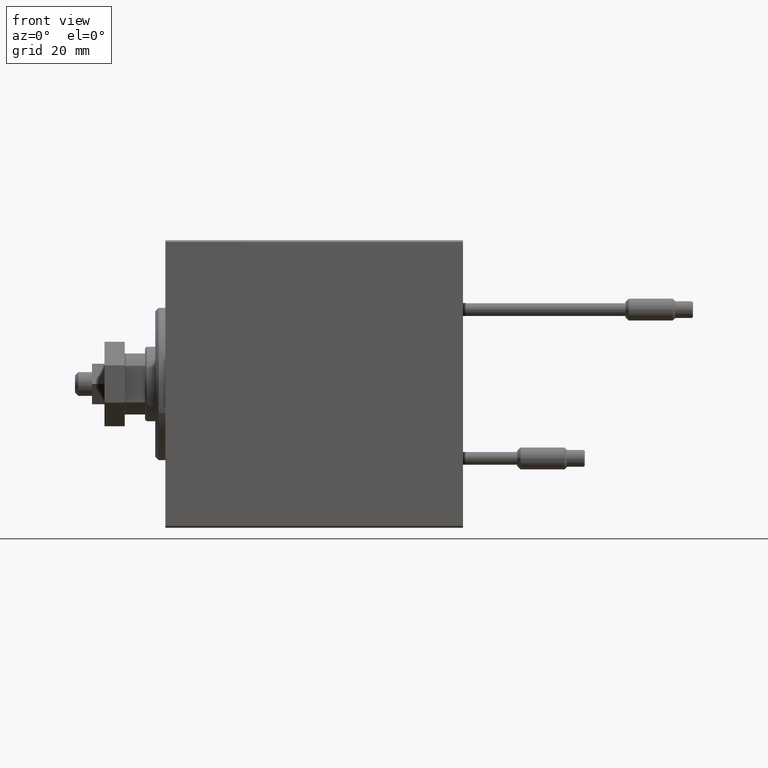
[diagram: clean part render]
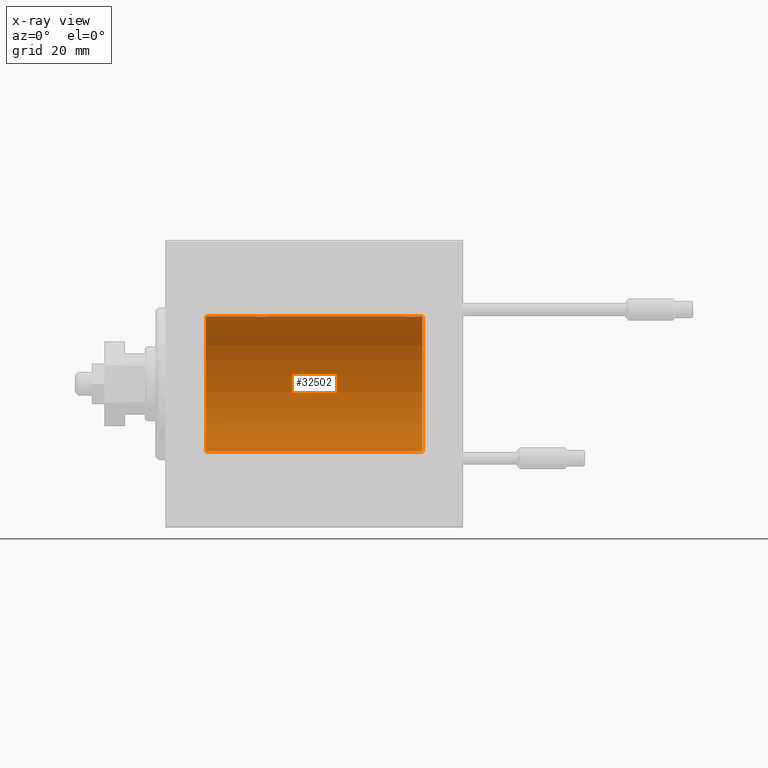
[diagram: x-ray — body ghosted, one internal face saturated and labeled with its STEP entity id]
A machine part, front view, then the same camera in x-ray: the body is ghosted and one INTERNAL B-rep face — a face not visible from any outside direction — is saturated and labeled: STEP entity #32502.
In plain terms, the highlighted cylindrical surface (partial cylindrical patch) has radius 20 mm, axis along (-1, -0, -0).
Its self-contained STEP definition (entity closure, byte-faithful):
#314 = ORIENTED_EDGE ( 'NONE', *, *, #10431, .T. ) ;
#994 = EDGE_CURVE ( 'NONE', #26368, #36437, #41208, .T. ) ;
#1301 = CARTESIAN_POINT ( 'NONE',  ( 30.39765113166074073, 0.6450624715427593081, 19.98996196681220283 ) ) ;
#1561 = CARTESIAN_POINT ( 'NONE',  ( 26.70246098872837592, 0.8865903856744279388, 19.98070694681038972 ) ) ;
#1801 = CARTESIAN_POINT ( 'NONE',  ( 30.50000000000000000, -9.453669475664189070E-16, 20.00000000000000000 ) ) ;
#2045 = CARTESIAN_POINT ( 'NONE',  ( 26.50000000000000355, -1.552596590610734385E-23, 20.00000000000000000 ) ) ;
#2378 = CARTESIAN_POINT ( 'NONE',  ( 72.37018818709297818, 2.000047251570878704, 19.89974399317116749 ) ) ;
#2417 = ORIENTED_EDGE ( 'NONE', *, *, #13092, .T. ) ;
#2619 = CARTESIAN_POINT ( 'NONE',  ( 72.76180153897439595, 1.999905101582712952, 19.89975827978156531 ) ) ;
#4889 = CARTESIAN_POINT ( 'NONE',  ( 26.76510545398016205, 1.003547732426802286, 19.97510079925437765 ) ) ;
#5039 = DIRECTION ( 'NONE',  ( -1.000000000000000000, -0.000000000000000000, -0.000000000000000000 ) ) ;
#5654 = CARTESIAN_POINT ( 'NONE',  ( 27.49702773215046392, 1.735228749583825225, 19.92471474456649005 ) ) ;
#5671 = CARTESIAN_POINT ( 'NONE',  ( 76.00000000000000000, 0.000000000000000000, 20.00000000000000000 ) ) ;
#6481 = CARTESIAN_POINT ( 'NONE',  ( 74.00615770380713343, 1.322305185229304181, 19.95645382900617548 ) ) ;
#6726 = CARTESIAN_POINT ( 'NONE',  ( 70.51308707988556534, 0.2631998640366407516, 19.99867931558986101 ) ) ;
#6748 = ORIENTED_EDGE ( 'NONE', *, *, #16480, .F. ) ;
#6976 = CARTESIAN_POINT ( 'NONE',  ( 74.29721343056696981, 0.8872481584516744846, 19.98067755938508938 ) ) ;
#7312 = VERTEX_POINT ( 'NONE', #40482 ) ;
#8988 = CARTESIAN_POINT ( 'NONE',  ( 26.90992932310326680, 1.220099331833893963, 19.96304379627741099 ) ) ;
#9232 = CARTESIAN_POINT ( 'NONE',  ( 27.17939834916166575, 1.507796451871720844, 19.94330239452387943 ) ) ;
#9485 = CARTESIAN_POINT ( 'NONE',  ( 26.56426851132708222, 0.5196544277756667274, 19.99365919015135873 ) ) ;
#9745 = CARTESIAN_POINT ( 'NONE',  ( 28.76180153897438174, 1.999905101582716727, 19.89975827978156531 ) ) ;
#10063 = CARTESIAN_POINT ( 'NONE',  ( 73.50645759073830732, 1.747830109444737046, 19.92373272380676852 ) ) ;
#10100 = AXIS2_PLACEMENT_3D ( 'NONE', #42607, #39041, #46958 ) ;
#10431 = EDGE_CURVE ( 'NONE', #34510, #7312, #24929, .T. ) ;
#12026 = DIRECTION ( 'NONE',  ( -1.000000000000000000, 0.000000000000000000, 0.000000000000000000 ) ) ;
#12265 = VECTOR ( 'NONE', #5039, 1000.000000000000000 ) ;
#12838 = CARTESIAN_POINT ( 'NONE',  ( 27.28039724650257014, 1.590453176650910017, 19.93679350243183990 ) ) ;
#13092 = EDGE_CURVE ( 'NONE', #7312, #47151, #32345, .T. ) ;
#13276 = EDGE_CURVE ( 'NONE', #47151, #24957, #32904, .T. ) ;
#13677 = CARTESIAN_POINT ( 'NONE',  ( 71.85628869360149906, 1.898109641280496751, 19.90978941500367227 ) ) ;
#13915 = CARTESIAN_POINT ( 'NONE',  ( 70.50000000000000000, -1.553188236289650144E-23, 20.00000000000000000 ) ) ;
#14090 = DIRECTION ( 'NONE',  ( -1.000000000000000000, -0.000000000000000000, -0.000000000000000000 ) ) ;
#14422 = CARTESIAN_POINT ( 'NONE',  ( 73.02513908454996283, 1.947330458682945187, 19.90522393307484705 ) ) ;
#14527 = CIRCLE ( 'NONE', #21871, 20.00000000000000000 ) ;
#15736 = CARTESIAN_POINT ( 'NONE',  ( 76.00000000000000000, 0.000000000000000000, 20.00000000000000000 ) ) ;
#16292 = VECTOR ( 'NONE', #21296, 1000.000000000000000 ) ;
#16480 = EDGE_CURVE ( 'NONE', #47291, #26368, #31662, .T. ) ;
#16794 = CARTESIAN_POINT ( 'NONE',  ( 76.00000000000000000, 0.000000000000000000, 0.000000000000000000 ) ) ;
#17429 = CARTESIAN_POINT ( 'NONE',  ( 30.49999999999998934, 0.1322335637814726905, 19.99999999999999645 ) ) ;
#17997 = CARTESIAN_POINT ( 'NONE',  ( 74.43615228383326610, 0.5179893069484604595, 19.99370013622813858 ) ) ;
#18244 = CARTESIAN_POINT ( 'NONE',  ( 74.50000000000001421, 1.186436973908835920E-15, 20.00000000000000000 ) ) ;
#18904 = CARTESIAN_POINT ( 'NONE',  ( 26.50000000000000355, -1.552596590610734385E-23, 20.00000000000000000 ) ) ;
#19000 = ORIENTED_EDGE ( 'NONE', *, *, #994, .F. ) ;
#20528 = LINE ( 'NONE', #5671, #16292 ) ;
#20574 = EDGE_LOOP ( 'NONE', ( #19000, #6748, #43995, #314, #2417, #43748, #48163, #33064 ) ) ;
#21029 = CARTESIAN_POINT ( 'NONE',  ( 26.99261358456011806, 1.321069663197663724, 19.95654117037012298 ) ) ;
#21296 = DIRECTION ( 'NONE',  ( -1.000000000000000000, -0.000000000000000000, -0.000000000000000000 ) ) ;
#21596 = CARTESIAN_POINT ( 'NONE',  ( 70.70246098872841856, 0.8865903856744244971, 19.98070694681040038 ) ) ;
#21871 = AXIS2_PLACEMENT_3D ( 'NONE', #43979, #12026, #47556 ) ;
#22602 = CARTESIAN_POINT ( 'NONE',  ( 71.61403810544165083, 1.797847595792759101, 19.91909332229799645 ) ) ;
#23627 = CARTESIAN_POINT ( 'NONE',  ( 76.00000000000000000, 2.449293598294706513E-15, -20.00000000000000000 ) ) ;
#24507 = LINE ( 'NONE', #44176, #12265 ) ;
#24607 = CARTESIAN_POINT ( 'NONE',  ( 29.50645759073829666, 1.747830109444738822, 19.92373272380676852 ) ) ;
#24929 = B_SPLINE_CURVE_WITH_KNOTS ( 'NONE', 3,
 ( #18244, #41029, #37448, #17997, #25431, #6976, #48713, #41530, #6481, #41275, #10063, #14422, #2619, #2378, #26437, #41782, #13677, #22602, #33596, #29285, #29520, #30032, #48957, #45617, #21596, #45869, #38206, #6726, #33849, #13915 ),
 .UNSPECIFIED., .F., .F.,
 ( 4, 2, 2, 2, 2, 2, 2, 2, 2, 2, 2, 2, 2, 2, 4 ),
 ( 1.152885170027690115E-18, 0.0003910512220831370437, 0.0007821024441662730031, 0.001173153666249408637, 0.001564204888332544705, 0.002346307332498786483, 0.003128409776665028695, 0.003519460998748129201, 0.003910512220831229707, 0.004301563442914329780, 0.004692614664997429852, 0.005083665887080529924, 0.005474717109163630864, 0.005865768331246730936, 0.006256819553329831876 ),
 .UNSPECIFIED. ) ;
#24957 = VERTEX_POINT ( 'NONE', #18904 ) ;
#25359 = CARTESIAN_POINT ( 'NONE',  ( 26.51308707988552982, 0.2631998640366418063, 19.99867931558985745 ) ) ;
#25431 = CARTESIAN_POINT ( 'NONE',  ( 74.39765113166073718, 0.6450624715427610845, 19.98996196681220283 ) ) ;
#26368 = VERTEX_POINT ( 'NONE', #23627 ) ;
#26437 = CARTESIAN_POINT ( 'NONE',  ( 72.23758582180001042, 1.987020435121064521, 19.90106552791689154 ) ) ;
#27003 = CARTESIAN_POINT ( 'NONE',  ( 30.50000000000000000, -9.453669475664189070E-16, 20.00000000000000000 ) ) ;
#27172 = VECTOR ( 'NONE', #14090, 1000.000000000000000 ) ;
#28213 = CARTESIAN_POINT ( 'NONE',  ( 11.99999999999999645, 0.000000000000000000, 20.00000000000000000 ) ) ;
#28703 = CARTESIAN_POINT ( 'NONE',  ( 26.50000000000000711, 0.1305706983324430859, 20.00000000000000355 ) ) ;
#28951 = CARTESIAN_POINT ( 'NONE',  ( 30.00615770380712988, 1.322305185229305735, 19.95645382900617548 ) ) ;
#29278 = VERTEX_POINT ( 'NONE', #28213 ) ;
#29285 = CARTESIAN_POINT ( 'NONE',  ( 71.28039724650255948, 1.590453176650905798, 19.93679350243183634 ) ) ;
#29446 = CARTESIAN_POINT ( 'NONE',  ( 29.72950112230633124, 1.598854313793179660, 19.93684595445884256 ) ) ;
#29520 = CARTESIAN_POINT ( 'NONE',  ( 71.17939834916165864, 1.507796451871717291, 19.94330239452387943 ) ) ;
#30011 = CARTESIAN_POINT ( 'NONE',  ( 76.00000000000000000, 0.000000000000000000, 20.00000000000000000 ) ) ;
#30032 = CARTESIAN_POINT ( 'NONE',  ( 70.99261358456013227, 1.321069663197660171, 19.95654117037011943 ) ) ;
#30503 = DIRECTION ( 'NONE',  ( -1.000000000000000000, -0.000000000000000000, -0.000000000000000000 ) ) ;
#30875 = CYLINDRICAL_SURFACE ( 'NONE', #10100, 20.00000000000000000 ) ;
#31662 = CIRCLE ( 'NONE', #34910, 20.00000000000000000 ) ;
#32345 = LINE ( 'NONE', #30011, #32350 ) ;
#32350 = VECTOR ( 'NONE', #30503, 1000.000000000000000 ) ;
#32502 = ADVANCED_FACE ( 'NONE', ( #34694 ), #30875, .F. ) ;
#32540 = CARTESIAN_POINT ( 'NONE',  ( 27.98100525813890371, 1.935912154109691308, 19.90610216711450775 ) ) ;
#32674 = CARTESIAN_POINT ( 'NONE',  ( 11.99999999999999645, 2.449293598294706513E-15, -20.00000000000000000 ) ) ;
#32904 = B_SPLINE_CURVE_WITH_KNOTS ( 'NONE', 3,
 ( #1801, #17429, #36626, #40711, #1301, #48372, #36102, #48623, #28951, #29446, #24607, #44029, #9745, #40190, #40447, #32540, #48133, #47864, #5654, #12838, #9232, #21029, #8988, #4889, #1561, #44532, #9485, #25359, #28703, #2045 ),
 .UNSPECIFIED., .F., .F.,
 ( 4, 2, 2, 2, 2, 2, 2, 2, 2, 2, 2, 2, 2, 2, 4 ),
 ( 1.491064056086547960E-18, 0.0003910512220831125949, 0.0007821024441662236719, 0.001173153666249334695, 0.001564204888332445826, 0.002346307332498667655, 0.003128409776664889917, 0.003519460998748006036, 0.003910512220831123022, 0.004301563442914238707, 0.004692614664997354391, 0.005083665887080470944, 0.005474717109163585761, 0.005865768331246702313, 0.006256819553329818866 ),
 .UNSPECIFIED. ) ;
#33064 = ORIENTED_EDGE ( 'NONE', *, *, #45530, .T. ) ;
#33596 = CARTESIAN_POINT ( 'NONE',  ( 71.49702773215048524, 1.735228749583821672, 19.92471474456648650 ) ) ;
#33849 = CARTESIAN_POINT ( 'NONE',  ( 70.50000000000001421, 0.1305706983324430304, 20.00000000000001066 ) ) ;
#34510 = VERTEX_POINT ( 'NONE', #34521 ) ;
#34521 = CARTESIAN_POINT ( 'NONE',  ( 74.50000000000001421, 1.186436973908835920E-15, 20.00000000000000000 ) ) ;
#34694 = FACE_OUTER_BOUND ( 'NONE', #20574, .T. ) ;
#34910 = AXIS2_PLACEMENT_3D ( 'NONE', #16794, #48001, #44147 ) ;
#36102 = CARTESIAN_POINT ( 'NONE',  ( 30.23576365127895471, 1.002099838626313133, 19.97517568592526516 ) ) ;
#36437 = VERTEX_POINT ( 'NONE', #32674 ) ;
#36626 = CARTESIAN_POINT ( 'NONE',  ( 30.48701494615325203, 0.2622407139811110399, 19.99868965376114716 ) ) ;
#37448 = CARTESIAN_POINT ( 'NONE',  ( 74.48701494615326624, 0.2622407139811092636, 19.99868965376114716 ) ) ;
#38206 = CARTESIAN_POINT ( 'NONE',  ( 70.56426851132709999, 0.5196544277756649510, 19.99365919015136583 ) ) ;
#39041 = DIRECTION ( 'NONE',  ( -1.000000000000000000, -0.000000000000000000, -0.000000000000000000 ) ) ;
#40190 = CARTESIAN_POINT ( 'NONE',  ( 28.37018818709294266, 2.000047251570880924, 19.89974399317116038 ) ) ;
#40447 = CARTESIAN_POINT ( 'NONE',  ( 28.23758582179998911, 1.987020435121066742, 19.90106552791689509 ) ) ;
#40482 = CARTESIAN_POINT ( 'NONE',  ( 70.50000000000000000, -1.553188236289650144E-23, 20.00000000000000000 ) ) ;
#40711 = CARTESIAN_POINT ( 'NONE',  ( 30.43615228383326610, 0.5179893069484617918, 19.99370013622814213 ) ) ;
#41029 = CARTESIAN_POINT ( 'NONE',  ( 74.50000000000002842, 0.1322335637814732179, 19.99999999999999289 ) ) ;
#41208 = LINE ( 'NONE', #41704, #27172 ) ;
#41275 = CARTESIAN_POINT ( 'NONE',  ( 73.72950112230634545, 1.598854313793176551, 19.93684595445884966 ) ) ;
#41530 = CARTESIAN_POINT ( 'NONE',  ( 74.09059733457554842, 1.219458756546262235, 19.96308513509967142 ) ) ;
#41704 = CARTESIAN_POINT ( 'NONE',  ( 76.00000000000000000, 2.449293598294706513E-15, -20.00000000000000000 ) ) ;
#41782 = CARTESIAN_POINT ( 'NONE',  ( 71.98100525813890727, 1.935912154109689753, 19.90610216711451130 ) ) ;
#42607 = CARTESIAN_POINT ( 'NONE',  ( 76.00000000000000000, 0.000000000000000000, 0.000000000000000000 ) ) ;
#43748 = ORIENTED_EDGE ( 'NONE', *, *, #13276, .T. ) ;
#43979 = CARTESIAN_POINT ( 'NONE',  ( 11.99999999999999645, 0.000000000000000000, 0.000000000000000000 ) ) ;
#43995 = ORIENTED_EDGE ( 'NONE', *, *, #50395, .T. ) ;
#44029 = CARTESIAN_POINT ( 'NONE',  ( 29.02513908454999125, 1.947330458682948739, 19.90522393307485061 ) ) ;
#44147 = DIRECTION ( 'NONE',  ( 0.000000000000000000, 0.000000000000000000, 1.000000000000000000 ) ) ;
#44176 = CARTESIAN_POINT ( 'NONE',  ( 76.00000000000000000, 0.000000000000000000, 20.00000000000000000 ) ) ;
#44532 = CARTESIAN_POINT ( 'NONE',  ( 26.60210312641135033, 0.6443418861413088283, 19.98998539619404724 ) ) ;
#45530 = EDGE_CURVE ( 'NONE', #29278, #36437, #14527, .T. ) ;
#45617 = CARTESIAN_POINT ( 'NONE',  ( 70.76510545398019758, 1.003547732426800287, 19.97510079925437765 ) ) ;
#45869 = CARTESIAN_POINT ( 'NONE',  ( 70.60210312641139296, 0.6443418861413054977, 19.98998539619405435 ) ) ;
#46958 = DIRECTION ( 'NONE',  ( 0.000000000000000000, 0.000000000000000000, 1.000000000000000000 ) ) ;
#47151 = VERTEX_POINT ( 'NONE', #27003 ) ;
#47291 = VERTEX_POINT ( 'NONE', #15736 ) ;
#47556 = DIRECTION ( 'NONE',  ( 0.000000000000000000, 0.000000000000000000, 1.000000000000000000 ) ) ;
#47864 = CARTESIAN_POINT ( 'NONE',  ( 27.61403810544162951, 1.797847595792757769, 19.91909332229799290 ) ) ;
#48001 = DIRECTION ( 'NONE',  ( -1.000000000000000000, 0.000000000000000000, 0.000000000000000000 ) ) ;
#48133 = CARTESIAN_POINT ( 'NONE',  ( 27.85628869360149906, 1.898109641280498083, 19.90978941500367583 ) ) ;
#48163 = ORIENTED_EDGE ( 'NONE', *, *, #48377, .T. ) ;
#48372 = CARTESIAN_POINT ( 'NONE',  ( 30.29721343056696270, 0.8872481584516728192, 19.98067755938509293 ) ) ;
#48377 = EDGE_CURVE ( 'NONE', #24957, #29278, #20528, .T. ) ;
#48623 = CARTESIAN_POINT ( 'NONE',  ( 30.09059733457551999, 1.219458756546268674, 19.96308513509966787 ) ) ;
#48713 = CARTESIAN_POINT ( 'NONE',  ( 74.23576365127897247, 1.002099838626306916, 19.97517568592525805 ) ) ;
#48957 = CARTESIAN_POINT ( 'NONE',  ( 70.90992932310328456, 1.220099331833891965, 19.96304379627741810 ) ) ;
#50395 = EDGE_CURVE ( 'NONE', #47291, #34510, #24507, .T. ) ;